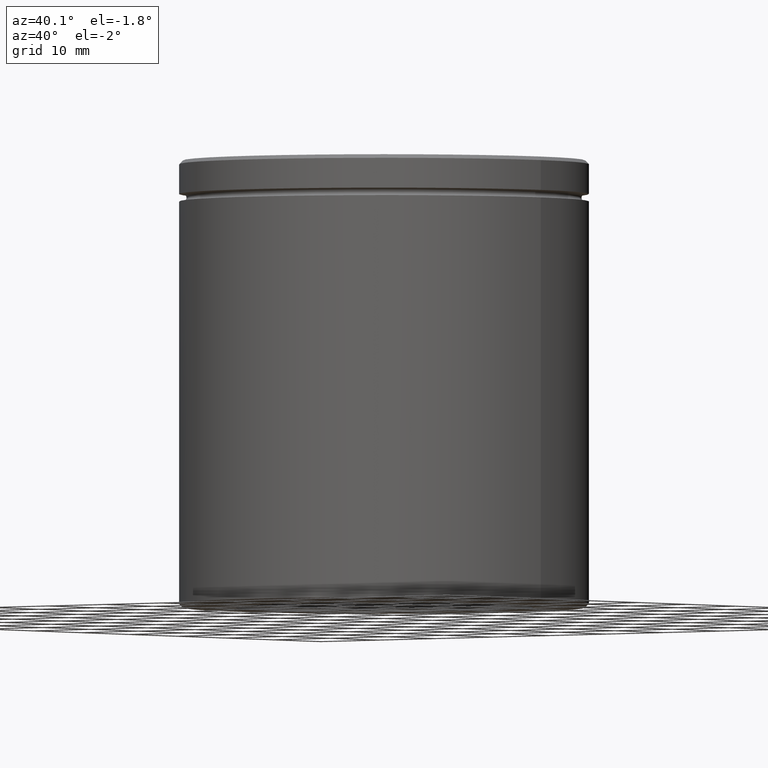
[diagram: clean part render]
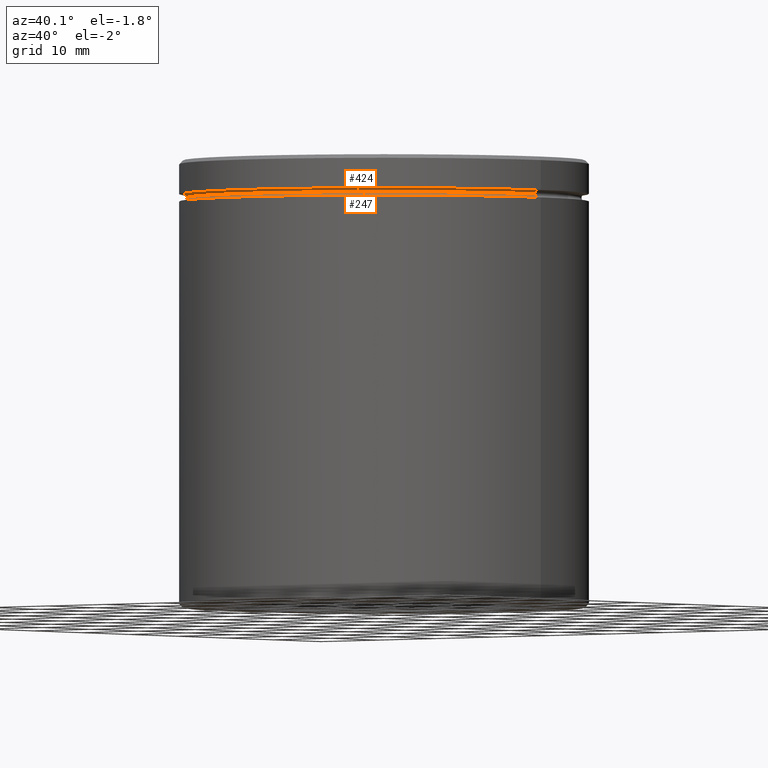
[diagram: same view with one multi-face feature highlighted, each face labeled with its STEP entity id]
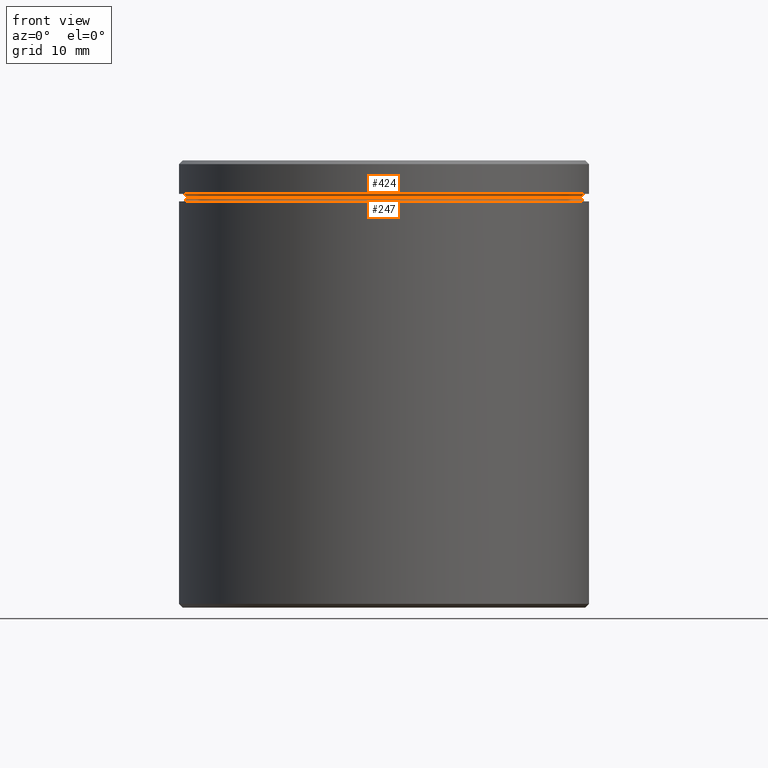
[diagram: same view with one multi-face feature highlighted, each face labeled with its STEP entity id]
A machine part, auxiliary view. The highlighted faces form ONE feature: a constant-radius fillet chain: 2 tangent blend faces with common blend radius 0.5 mm. The faces share edges in the B-rep.
A second angle (front view) of the same feature is appended — it is thin or edge-on in the first view.
Their STEP definitions:
[1] entity #424 (Torus):
#2 = DIRECTION ( 'NONE',  ( -0.000000000000000000, -0.000000000000000000, 1.000000000000000000 ) ) ;
#11 = DIRECTION ( 'NONE',  ( 0.000000000000000000, 0.000000000000000000, -1.000000000000000000 ) ) ;
#15 = AXIS2_PLACEMENT_3D ( 'NONE', #185, #49, #359 ) ;
#23 = CARTESIAN_POINT ( 'NONE',  ( 27.00000000000000000, 3.306546357697854128E-15, -4.500000000000000888 ) ) ;
#26 = DIRECTION ( 'NONE',  ( 0.000000000000000000, 0.000000000000000000, -1.000000000000000000 ) ) ;
#28 = CARTESIAN_POINT ( 'NONE',  ( -27.00000000000000000, 0.000000000000000000, -5.000000000000000888 ) ) ;
#33 = AXIS2_PLACEMENT_3D ( 'NONE', #497, #11, #106 ) ;
#49 = DIRECTION ( 'NONE',  ( -0.000000000000000000, -0.000000000000000000, 1.000000000000000000 ) ) ;
#63 = CARTESIAN_POINT ( 'NONE',  ( 27.00000000000000000, 3.306546357697853733E-15, -5.000000000000000888 ) ) ;
#106 = DIRECTION ( 'NONE',  ( -1.000000000000000000, 0.000000000000000000, 0.000000000000000000 ) ) ;
#109 = CARTESIAN_POINT ( 'NONE',  ( 26.50000000000000000, 0.000000000000000000, -4.999999999999999112 ) ) ;
#118 = TOROIDAL_SURFACE ( 'NONE', #33, 27.00000000000000000, 0.5000000000000000000 ) ;
#129 = CIRCLE ( 'NONE', #298, 26.50000000000000000 ) ;
#138 = AXIS2_PLACEMENT_3D ( 'NONE', #28, #214, #26 ) ;
#149 = EDGE_CURVE ( 'NONE', #236, #358, #213, .T. ) ;
#185 = CARTESIAN_POINT ( 'NONE',  ( 0.000000000000000000, 0.000000000000000000, -4.500000000000000888 ) ) ;
#213 = CIRCLE ( 'NONE', #138, 0.5000000000000004441 ) ;
#214 = DIRECTION ( 'NONE',  ( -0.000000000000000000, -1.000000000000000000, -0.000000000000000000 ) ) ;
#220 = CARTESIAN_POINT ( 'NONE',  ( 0.000000000000000000, 0.000000000000000000, -4.999999999999999112 ) ) ;
#236 = VERTEX_POINT ( 'NONE', #268 ) ;
#248 = DIRECTION ( 'NONE',  ( -1.000000000000000000, -1.224646799147349509E-16, 0.000000000000000000 ) ) ;
#268 = CARTESIAN_POINT ( 'NONE',  ( -26.50000000000000000, 3.275930187719169552E-15, -4.999999999999999112 ) ) ;
#282 = ORIENTED_EDGE ( 'NONE', *, *, #525, .T. ) ;
#286 = EDGE_CURVE ( 'NONE', #236, #496, #129, .T. ) ;
#298 = AXIS2_PLACEMENT_3D ( 'NONE', #220, #2, #480 ) ;
#324 = EDGE_CURVE ( 'NONE', #358, #376, #369, .T. ) ;
#334 = AXIS2_PLACEMENT_3D ( 'NONE', #63, #454, #248 ) ;
#347 = ORIENTED_EDGE ( 'NONE', *, *, #324, .F. ) ;
#358 = VERTEX_POINT ( 'NONE', #493 ) ;
#359 = DIRECTION ( 'NONE',  ( -1.000000000000000000, 0.000000000000000000, 0.000000000000000000 ) ) ;
#369 = CIRCLE ( 'NONE', #15, 27.00000000000000000 ) ;
#376 = VERTEX_POINT ( 'NONE', #23 ) ;
#400 = EDGE_LOOP ( 'NONE', ( #521, #282, #347, #500 ) ) ;
#424 = ADVANCED_FACE ( 'NONE', ( #446 ), #118, .F. ) ;
#446 = FACE_OUTER_BOUND ( 'NONE', #400, .T. ) ;
#454 = DIRECTION ( 'NONE',  ( -1.224646799147353207E-16, 1.000000000000000000, 0.000000000000000000 ) ) ;
#480 = DIRECTION ( 'NONE',  ( 1.000000000000000000, 0.000000000000000000, 0.000000000000000000 ) ) ;
#493 = CARTESIAN_POINT ( 'NONE',  ( -27.00000000000000000, 0.000000000000000000, -4.500000000000000888 ) ) ;
#496 = VERTEX_POINT ( 'NONE', #109 ) ;
#497 = CARTESIAN_POINT ( 'NONE',  ( 0.000000000000000000, 0.000000000000000000, -5.000000000000000888 ) ) ;
#500 = ORIENTED_EDGE ( 'NONE', *, *, #149, .F. ) ;
#509 = CIRCLE ( 'NONE', #334, 0.5000000000000004441 ) ;
#521 = ORIENTED_EDGE ( 'NONE', *, *, #286, .T. ) ;
#525 = EDGE_CURVE ( 'NONE', #496, #376, #509, .T. ) ;
[2] entity #247 (Torus):
#2 = DIRECTION ( 'NONE',  ( -0.000000000000000000, -0.000000000000000000, 1.000000000000000000 ) ) ;
#12 = DIRECTION ( 'NONE',  ( -1.000000000000000000, 1.224646799147349509E-16, 0.000000000000000000 ) ) ;
#19 = CARTESIAN_POINT ( 'NONE',  ( -27.00000000000000000, 3.306546357697854128E-15, -5.500000000000000000 ) ) ;
#32 = AXIS2_PLACEMENT_3D ( 'NONE', #450, #246, #12 ) ;
#37 = EDGE_CURVE ( 'NONE', #236, #455, #309, .T. ) ;
#55 = DIRECTION ( 'NONE',  ( 0.000000000000000000, 0.000000000000000000, -1.000000000000000000 ) ) ;
#57 = CARTESIAN_POINT ( 'NONE',  ( 27.00000000000000000, 0.000000000000000000, -5.500000000000000000 ) ) ;
#109 = CARTESIAN_POINT ( 'NONE',  ( 26.50000000000000000, 0.000000000000000000, -4.999999999999999112 ) ) ;
#114 = DIRECTION ( 'NONE',  ( 0.000000000000000000, 0.000000000000000000, -1.000000000000000000 ) ) ;
#129 = CIRCLE ( 'NONE', #298, 26.50000000000000000 ) ;
#136 = CARTESIAN_POINT ( 'NONE',  ( 0.000000000000000000, 0.000000000000000000, -4.999999999999999112 ) ) ;
#160 = AXIS2_PLACEMENT_3D ( 'NONE', #136, #308, #224 ) ;
#164 = EDGE_CURVE ( 'NONE', #496, #403, #349, .T. ) ;
#165 = DIRECTION ( 'NONE',  ( 0.000000000000000000, -1.000000000000000000, 0.000000000000000000 ) ) ;
#171 = FACE_OUTER_BOUND ( 'NONE', #179, .T. ) ;
#179 = EDGE_LOOP ( 'NONE', ( #269, #364, #289, #353 ) ) ;
#220 = CARTESIAN_POINT ( 'NONE',  ( 0.000000000000000000, 0.000000000000000000, -4.999999999999999112 ) ) ;
#224 = DIRECTION ( 'NONE',  ( 1.000000000000000000, 0.000000000000000000, 0.000000000000000000 ) ) ;
#236 = VERTEX_POINT ( 'NONE', #268 ) ;
#246 = DIRECTION ( 'NONE',  ( 1.224646799147353207E-16, 1.000000000000000000, 0.000000000000000000 ) ) ;
#247 = ADVANCED_FACE ( 'NONE', ( #171 ), #253, .F. ) ;
#253 = TOROIDAL_SURFACE ( 'NONE', #160, 27.00000000000000000, 0.5000000000000000000 ) ;
#266 = AXIS2_PLACEMENT_3D ( 'NONE', #537, #55, #365 ) ;
#268 = CARTESIAN_POINT ( 'NONE',  ( -26.50000000000000000, 3.275930187719169552E-15, -4.999999999999999112 ) ) ;
#269 = ORIENTED_EDGE ( 'NONE', *, *, #286, .F. ) ;
#286 = EDGE_CURVE ( 'NONE', #236, #496, #129, .T. ) ;
#289 = ORIENTED_EDGE ( 'NONE', *, *, #352, .F. ) ;
#291 = CARTESIAN_POINT ( 'NONE',  ( 27.00000000000000000, 0.000000000000000000, -4.999999999999999112 ) ) ;
#298 = AXIS2_PLACEMENT_3D ( 'NONE', #220, #2, #480 ) ;
#308 = DIRECTION ( 'NONE',  ( -0.000000000000000000, -0.000000000000000000, 1.000000000000000000 ) ) ;
#309 = CIRCLE ( 'NONE', #32, 0.5000000000000004441 ) ;
#349 = CIRCLE ( 'NONE', #456, 0.5000000000000004441 ) ;
#352 = EDGE_CURVE ( 'NONE', #403, #455, #447, .T. ) ;
#353 = ORIENTED_EDGE ( 'NONE', *, *, #164, .F. ) ;
#364 = ORIENTED_EDGE ( 'NONE', *, *, #37, .T. ) ;
#365 = DIRECTION ( 'NONE',  ( 1.000000000000000000, 0.000000000000000000, 0.000000000000000000 ) ) ;
#403 = VERTEX_POINT ( 'NONE', #57 ) ;
#447 = CIRCLE ( 'NONE', #266, 27.00000000000000000 ) ;
#450 = CARTESIAN_POINT ( 'NONE',  ( -27.00000000000000000, 3.306546357697853733E-15, -4.999999999999999112 ) ) ;
#455 = VERTEX_POINT ( 'NONE', #19 ) ;
#456 = AXIS2_PLACEMENT_3D ( 'NONE', #291, #165, #114 ) ;
#480 = DIRECTION ( 'NONE',  ( 1.000000000000000000, 0.000000000000000000, 0.000000000000000000 ) ) ;
#496 = VERTEX_POINT ( 'NONE', #109 ) ;
#537 = CARTESIAN_POINT ( 'NONE',  ( 0.000000000000000000, 0.000000000000000000, -5.500000000000000000 ) ) ;